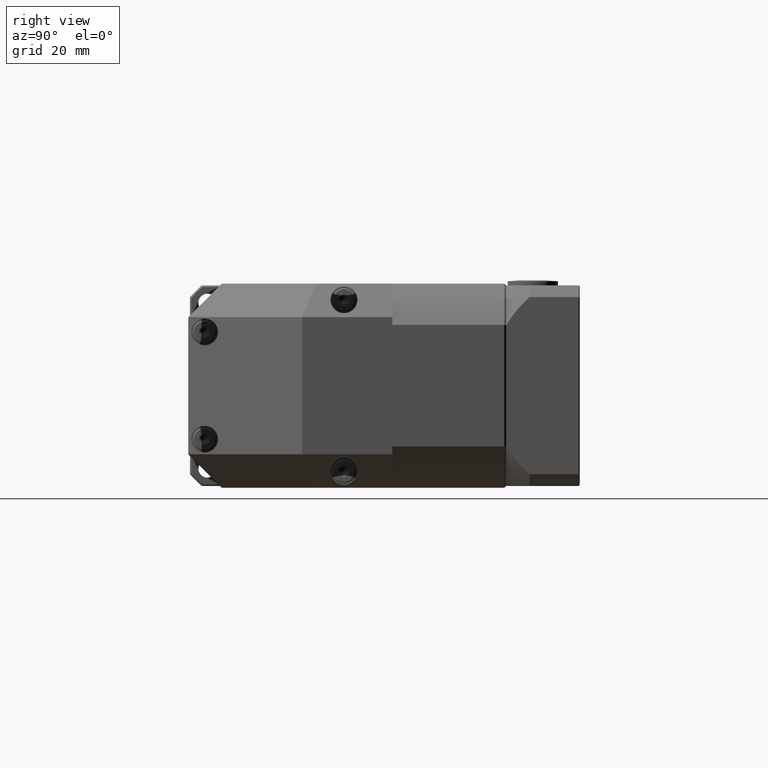
[diagram: clean part render]
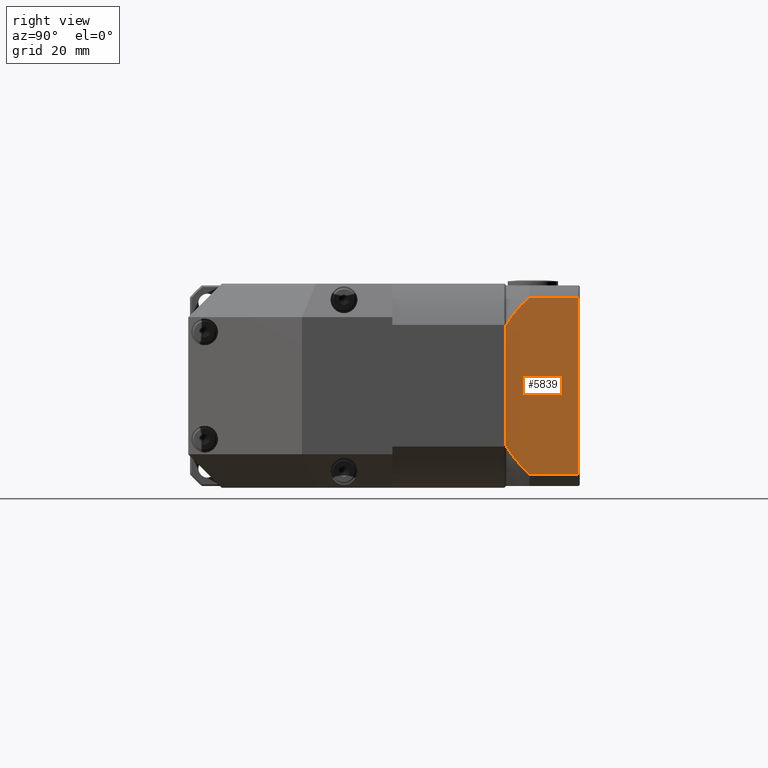
[diagram: same view with one face highlighted and labeled with its STEP entity id]
A machine part, right view. The second image highlights one B-rep face of the part: STEP entity #5839.
In plain terms, the highlighted planar face has unit normal (1, 0, 0).
Its self-contained STEP definition (entity closure, byte-faithful):
#215=LINE('',#8941,#523);
#218=LINE('',#8953,#526);
#229=LINE('',#9109,#537);
#232=LINE('',#9172,#540);
#239=LINE('',#9252,#547);
#240=LINE('',#9253,#548);
#523=VECTOR('',#7162,0.00164818853103821);
#526=VECTOR('',#7173,0.0016481885309183);
#537=VECTOR('',#7234,52.9150262212918);
#540=VECTOR('',#7251,14.5013619158547);
#547=VECTOR('',#7360,36.0555127546884);
#548=VECTOR('',#7361,14.5013619158547);
#941=PLANE('',#6357);
#1371=FACE_OUTER_BOUND('',#1835,.T.);
#1835=EDGE_LOOP('',(#4195,#4196,#4197,#4198,#4199,#4200,#4201,#4202));
#2319=CIRCLE('',#6351,35.246293776793);
#2322=CIRCLE('',#6355,35.246293776793);
#2626=VERTEX_POINT('',#8937);
#2628=VERTEX_POINT('',#8940);
#2631=VERTEX_POINT('',#8947);
#2633=VERTEX_POINT('',#8951);
#2661=VERTEX_POINT('',#9084);
#2662=VERTEX_POINT('',#9108);
#2666=VERTEX_POINT('',#9170);
#2687=VERTEX_POINT('',#9243);
#3179=EDGE_CURVE('',#2626,#2628,#215,.T.);
#3185=EDGE_CURVE('',#2633,#2631,#218,.T.);
#3221=EDGE_CURVE('',#2661,#2662,#229,.T.);
#3231=EDGE_CURVE('',#2661,#2666,#232,.T.);
#3259=EDGE_CURVE('',#2633,#2687,#2319,.T.);
#3262=EDGE_CURVE('',#2666,#2628,#2322,.T.);
#3263=EDGE_CURVE('',#2631,#2626,#239,.T.);
#3264=EDGE_CURVE('',#2662,#2687,#240,.T.);
#4195=ORIENTED_EDGE('',*,*,#3221,.F.);
#4196=ORIENTED_EDGE('',*,*,#3231,.T.);
#4197=ORIENTED_EDGE('',*,*,#3262,.T.);
#4198=ORIENTED_EDGE('',*,*,#3179,.F.);
#4199=ORIENTED_EDGE('',*,*,#3263,.F.);
#4200=ORIENTED_EDGE('',*,*,#3185,.F.);
#4201=ORIENTED_EDGE('',*,*,#3259,.T.);
#4202=ORIENTED_EDGE('',*,*,#3264,.F.);
#5839=ADVANCED_FACE('',(#1371),#941,.T.);
#6351=AXIS2_PLACEMENT_3D('',#9244,#7346,#7347);
#6355=AXIS2_PLACEMENT_3D('',#9249,#7354,#7355);
#6357=AXIS2_PLACEMENT_3D('',#9251,#7358,#7359);
#7162=DIRECTION('',(-4.14383615110898E-15,1.31997762995427E-15,1.));
#7173=DIRECTION('',(-4.14383615110898E-15,1.31997762995428E-15,1.));
#7234=DIRECTION('',(4.14383615110898E-15,-1.31997762995427E-15,-1.));
#7251=DIRECTION('',(1.04520023456132E-15,-1.,1.31997762995428E-15));
#7346=DIRECTION('center_axis',(1.,1.04520023456133E-15,4.14383615110898E-15));
#7347=DIRECTION('ref_axis',(-4.14383615110898E-15,1.31997762995427E-15,
1.));
#7354=DIRECTION('center_axis',(1.,1.04520023456133E-15,4.14383615110898E-15));
#7355=DIRECTION('ref_axis',(-4.14383615110898E-15,1.31997762995427E-15,
1.));
#7358=DIRECTION('center_axis',(1.,1.04520023456133E-15,4.14383615110898E-15));
#7359=DIRECTION('ref_axis',(-4.2632564145606E-15,0.,1.));
#7360=DIRECTION('',(-3.19187243517474E-15,-2.66949609919318E-16,1.));
#7361=DIRECTION('',(1.04520023456132E-15,-1.,1.31997762995428E-15));
#8937=CARTESIAN_POINT('',(98.9079195786629,112.654813882049,20.411406944722));
#8940=CARTESIAN_POINT('',(98.9079195786626,112.654813882048,20.413055133253));
#8941=CARTESIAN_POINT('',(98.9079195786626,112.654813882048,28.8411636780238));
#8947=CARTESIAN_POINT('',(98.907919578663,112.654813882049,-15.6441058099664));
#8951=CARTESIAN_POINT('',(98.9079195786628,112.654813882048,-15.6457539984973));
#8953=CARTESIAN_POINT('',(98.9079195786626,112.654813882048,28.8411636780238));
#9084=CARTESIAN_POINT('',(98.9079195786626,134.154813882048,28.8411636780238));
#9108=CARTESIAN_POINT('',(98.9079195786628,134.154813882048,-24.0738625432681));
#9109=CARTESIAN_POINT('',(98.9079195786627,134.154813882048,-10.8451059879451));
#9170=CARTESIAN_POINT('',(98.9079195786626,119.653451966194,28.8411636780238));
#9172=CARTESIAN_POINT('',(98.9079195786626,134.654813882048,28.8411636780238));
#9243=CARTESIAN_POINT('',(98.9079195786628,119.653451966193,-24.073862543268));
#9244=CARTESIAN_POINT('Origin',(98.9079195786627,142.940813882048,2.38365056737783));
#9249=CARTESIAN_POINT('Origin',(98.9079195786627,142.940813882048,2.38365056737783));
#9251=CARTESIAN_POINT('Origin',(98.9079195786628,134.654813882048,-24.0738625432681));
#9252=CARTESIAN_POINT('',(98.907919578663,112.654813882049,2.38365056739963));
#9253=CARTESIAN_POINT('',(98.9079195786628,134.654813882048,-24.0738625432681));